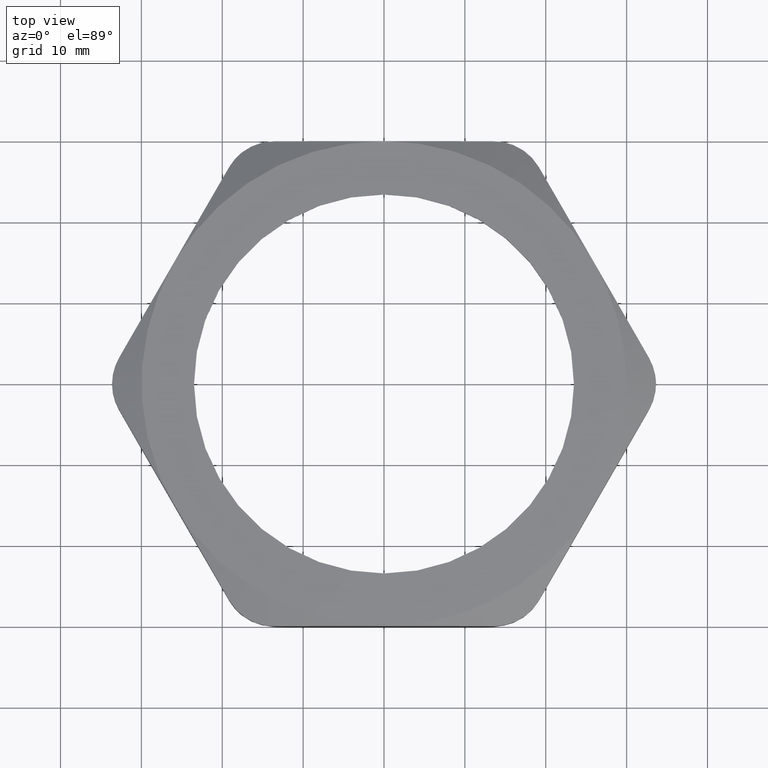
[diagram: clean part render]
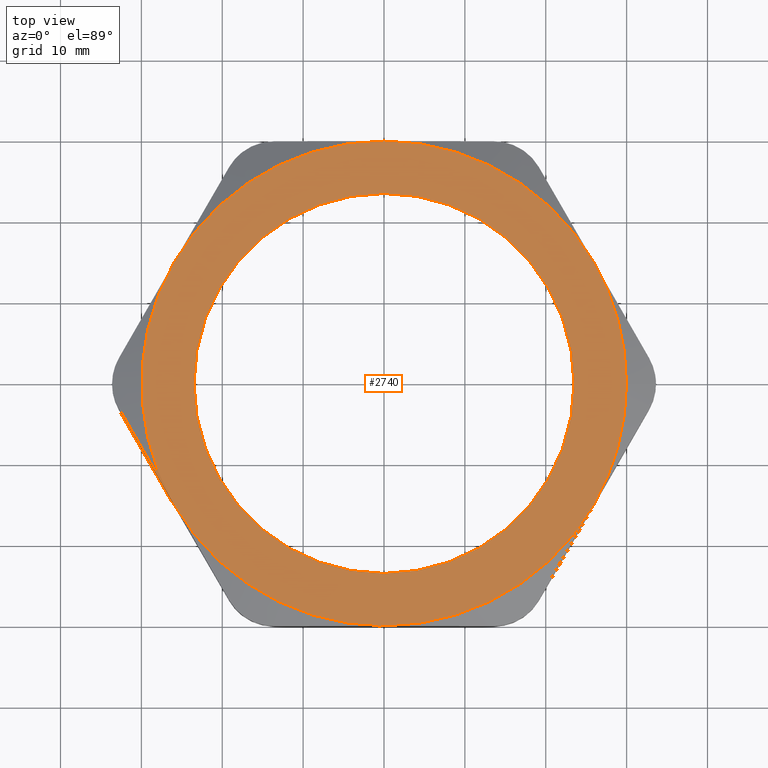
[diagram: same view with one face highlighted and labeled with its STEP entity id]
A machine part, top view. The second image highlights one B-rep face of the part: STEP entity #2740.
In plain terms, the highlighted planar face has unit normal (0, 0, -1).
Its self-contained STEP definition (entity closure, byte-faithful):
#406 = CARTESIAN_POINT ( 'NONE',  ( 0.9250000000000002700, 1.145044757202775500E-016, 0.3100000000000000000 ) ) ;
#407 = CARTESIAN_POINT ( 'NONE',  ( -0.9250000000000002700, 0.0000000000000000000, 0.3100000000000000000 ) ) ;
#408 = DIRECTION ( 'NONE',  ( 1.000000000000000000, 0.0000000000000000000, 0.0000000000000000000 ) ) ;
#409 = DIRECTION ( 'NONE',  ( 0.0000000000000000000, 0.0000000000000000000, 1.000000000000000000 ) ) ;
#410 = AXIS2_PLACEMENT_3D ( 'NONE', #417, #409, #408 ) ;
#411 = CIRCLE ( 'NONE', #410, 0.9250000000000002700 ) ;
#417 = CARTESIAN_POINT ( 'NONE',  ( 0.0000000000000000000, 0.0000000000000000000, 0.3100000000000000000 ) ) ;
#530 = EDGE_CURVE ( 'NONE', #531, #532, #411, .T. ) ;
#531 = VERTEX_POINT ( 'NONE', #407 ) ;
#532 = VERTEX_POINT ( 'NONE', #406 ) ;
#1262 = CARTESIAN_POINT ( 'NONE',  ( -1.182924880895401300E-016, 1.180000000000000200, 0.3100000000000000000 ) ) ;
#1268 = CARTESIAN_POINT ( 'NONE',  ( -1.021909976465637900, -0.5899999999999995200, 0.3100000000000000000 ) ) ;
#1483 = CARTESIAN_POINT ( 'NONE',  ( 1.021909976465637600, -0.5900000000000000800, 0.3100000000000000000 ) ) ;
#1522 = CARTESIAN_POINT ( 'NONE',  ( 2.365849761790801500E-016, -1.179999999999999900, 0.3100000000000000000 ) ) ;
#1651 = CARTESIAN_POINT ( 'NONE',  ( 1.021909976465638100, 0.5899999999999999700, 0.3100000000000000000 ) ) ;
#1652 = CARTESIAN_POINT ( 'NONE',  ( 1.180000000000000200, 0.0000000000000000000, 0.3100000000000000000 ) ) ;
#1653 = DIRECTION ( 'NONE',  ( 1.000000000000000000, 0.0000000000000000000, 0.0000000000000000000 ) ) ;
#1654 = DIRECTION ( 'NONE',  ( 0.0000000000000000000, 0.0000000000000000000, 1.000000000000000000 ) ) ;
#1655 = CARTESIAN_POINT ( 'NONE',  ( 0.0000000000000000000, 0.0000000000000000000, 0.3100000000000000000 ) ) ;
#1656 = AXIS2_PLACEMENT_3D ( 'NONE', #1655, #1654, #1653 ) ;
#1657 = CIRCLE ( 'NONE', #1656, 1.180000000000000200 ) ;
#1791 = CARTESIAN_POINT ( 'NONE',  ( -1.021909976465637400, 0.5899999999999999700, 0.3100000000000000000 ) ) ;
#1869 = CARTESIAN_POINT ( 'NONE',  ( 0.0000000000000000000, 0.0000000000000000000, 0.3100000000000000000 ) ) ;
#1870 = AXIS2_PLACEMENT_3D ( 'NONE', #1869, #1886, #1921 ) ;
#1871 = CIRCLE ( 'NONE', #1870, 0.9250000000000002700 ) ;
#1886 = DIRECTION ( 'NONE',  ( 0.0000000000000000000, 0.0000000000000000000, 1.000000000000000000 ) ) ;
#1921 = DIRECTION ( 'NONE',  ( 1.000000000000000000, 0.0000000000000000000, 0.0000000000000000000 ) ) ;
#1922 = CIRCLE ( 'NONE', #1988, 1.180000000000000200 ) ;
#1923 = DIRECTION ( 'NONE',  ( 1.000000000000000000, 0.0000000000000000000, 0.0000000000000000000 ) ) ;
#1924 = DIRECTION ( 'NONE',  ( 0.0000000000000000000, 0.0000000000000000000, 1.000000000000000000 ) ) ;
#1925 = CARTESIAN_POINT ( 'NONE',  ( 0.0000000000000000000, 0.0000000000000000000, 0.3100000000000000000 ) ) ;
#1926 = AXIS2_PLACEMENT_3D ( 'NONE', #1925, #1924, #1923 ) ;
#1927 = CIRCLE ( 'NONE', #1926, 1.180000000000000200 ) ;
#1935 = DIRECTION ( 'NONE',  ( -1.000000000000000000, 0.0000000000000000000, 0.0000000000000000000 ) ) ;
#1936 = DIRECTION ( 'NONE',  ( 0.0000000000000000000, 0.0000000000000000000, -1.000000000000000000 ) ) ;
#1937 = CARTESIAN_POINT ( 'NONE',  ( 5.463695987328526400E-016, 2.360000000000000800, 0.3100000000000000000 ) ) ;
#1938 = AXIS2_PLACEMENT_3D ( 'NONE', #1937, #1936, #1935 ) ;
#1939 = PLANE ( 'NONE',  #1938 ) ;
#1940 = FACE_OUTER_BOUND ( 'NONE', #2785, .T. ) ;
#1941 = FACE_BOUND ( 'NONE', #2709, .T. ) ;
#1985 = DIRECTION ( 'NONE',  ( 1.000000000000000000, 0.0000000000000000000, 0.0000000000000000000 ) ) ;
#1986 = DIRECTION ( 'NONE',  ( 0.0000000000000000000, 0.0000000000000000000, 1.000000000000000000 ) ) ;
#1987 = CARTESIAN_POINT ( 'NONE',  ( 0.0000000000000000000, 0.0000000000000000000, 0.3100000000000000000 ) ) ;
#1988 = AXIS2_PLACEMENT_3D ( 'NONE', #1987, #1986, #1985 ) ;
#2053 = DIRECTION ( 'NONE',  ( 1.000000000000000000, 0.0000000000000000000, 0.0000000000000000000 ) ) ;
#2054 = DIRECTION ( 'NONE',  ( 0.0000000000000000000, 0.0000000000000000000, 1.000000000000000000 ) ) ;
#2055 = CARTESIAN_POINT ( 'NONE',  ( 0.0000000000000000000, 0.0000000000000000000, 0.3100000000000000000 ) ) ;
#2056 = AXIS2_PLACEMENT_3D ( 'NONE', #2055, #2054, #2053 ) ;
#2057 = CIRCLE ( 'NONE', #2056, 1.180000000000000200 ) ;
#2125 = DIRECTION ( 'NONE',  ( 1.000000000000000000, 0.0000000000000000000, 0.0000000000000000000 ) ) ;
#2140 = DIRECTION ( 'NONE',  ( 0.0000000000000000000, 0.0000000000000000000, 1.000000000000000000 ) ) ;
#2141 = CARTESIAN_POINT ( 'NONE',  ( 0.0000000000000000000, 0.0000000000000000000, 0.3100000000000000000 ) ) ;
#2142 = AXIS2_PLACEMENT_3D ( 'NONE', #2141, #2140, #2125 ) ;
#2143 = CIRCLE ( 'NONE', #2142, 1.180000000000000200 ) ;
#2191 = DIRECTION ( 'NONE',  ( 1.000000000000000000, 0.0000000000000000000, 0.0000000000000000000 ) ) ;
#2192 = DIRECTION ( 'NONE',  ( 0.0000000000000000000, 0.0000000000000000000, 1.000000000000000000 ) ) ;
#2193 = AXIS2_PLACEMENT_3D ( 'NONE', #2205, #2192, #2191 ) ;
#2194 = CIRCLE ( 'NONE', #2193, 1.180000000000000200 ) ;
#2195 = DIRECTION ( 'NONE',  ( 1.000000000000000000, 0.0000000000000000000, 0.0000000000000000000 ) ) ;
#2196 = DIRECTION ( 'NONE',  ( 0.0000000000000000000, 0.0000000000000000000, 1.000000000000000000 ) ) ;
#2197 = CARTESIAN_POINT ( 'NONE',  ( 0.0000000000000000000, 0.0000000000000000000, 0.3100000000000000000 ) ) ;
#2198 = AXIS2_PLACEMENT_3D ( 'NONE', #2197, #2196, #2195 ) ;
#2199 = CIRCLE ( 'NONE', #2198, 1.180000000000000200 ) ;
#2205 = CARTESIAN_POINT ( 'NONE',  ( 0.0000000000000000000, 0.0000000000000000000, 0.3100000000000000000 ) ) ;
#2418 = VERTEX_POINT ( 'NONE', #1262 ) ;
#2442 = VERTEX_POINT ( 'NONE', #1268 ) ;
#2533 = VERTEX_POINT ( 'NONE', #1483 ) ;
#2541 = VERTEX_POINT ( 'NONE', #1522 ) ;
#2607 = EDGE_CURVE ( 'NONE', #2608, #2609, #1657, .T. ) ;
#2608 = VERTEX_POINT ( 'NONE', #1652 ) ;
#2609 = VERTEX_POINT ( 'NONE', #1651 ) ;
#2667 = VERTEX_POINT ( 'NONE', #1791 ) ;
#2709 = EDGE_LOOP ( 'NONE', ( #2783, #2833 ) ) ;
#2715 = EDGE_CURVE ( 'NONE', #532, #531, #1871, .T. ) ;
#2716 = ORIENTED_EDGE ( 'NONE', *, *, #2748, .T. ) ;
#2740 = ADVANCED_FACE ( 'NONE', ( #1941, #1940 ), #1939, .F. ) ;
#2748 = EDGE_CURVE ( 'NONE', #2418, #2667, #1927, .T. ) ;
#2749 = ORIENTED_EDGE ( 'NONE', *, *, #2750, .T. ) ;
#2750 = EDGE_CURVE ( 'NONE', #2667, #2442, #1922, .T. ) ;
#2751 = ORIENTED_EDGE ( 'NONE', *, *, #2840, .T. ) ;
#2783 = ORIENTED_EDGE ( 'NONE', *, *, #530, .F. ) ;
#2785 = EDGE_LOOP ( 'NONE', ( #2716, #2749, #2751, #2841, #2800, #2802, #2822 ) ) ;
#2800 = ORIENTED_EDGE ( 'NONE', *, *, #2801, .T. ) ;
#2801 = EDGE_CURVE ( 'NONE', #2533, #2608, #2057, .T. ) ;
#2802 = ORIENTED_EDGE ( 'NONE', *, *, #2607, .T. ) ;
#2822 = ORIENTED_EDGE ( 'NONE', *, *, #2823, .T. ) ;
#2823 = EDGE_CURVE ( 'NONE', #2609, #2418, #2143, .T. ) ;
#2833 = ORIENTED_EDGE ( 'NONE', *, *, #2715, .F. ) ;
#2840 = EDGE_CURVE ( 'NONE', #2442, #2541, #2199, .T. ) ;
#2841 = ORIENTED_EDGE ( 'NONE', *, *, #2842, .T. ) ;
#2842 = EDGE_CURVE ( 'NONE', #2541, #2533, #2194, .T. ) ;